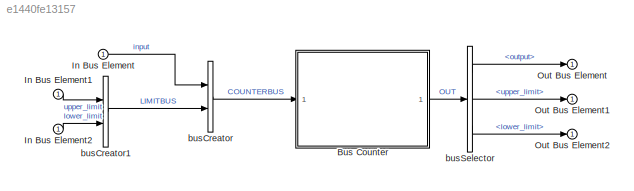
MODEL slx_e1440fe13157
KIND model
CONFIG AbsTol = auto
CONFIG EnableMultiTasking = on
CONFIG FixedStep = 0.1
CONFIG InitFcn = warning('off','Simulink:Logging:DatasetRTWGenRootOutputNotSupported');\nwarning('off','Simulink:Logging:DatasetRTWGenStateNotSupported');
CONFIG MaxStep = auto
CONFIG MinStep = auto
CONFIG RelTol = 1e-3
CONFIG SampleTimeConstraint = Unconstrained
CONFIG Solver = ode5
CONFIG SolverName = ode5
CONFIG StartFcn = warning('off','Simulink:Logging:DatasetRTWGenRootOutputNotSupported');\nwarning('off','Simulink:Logging:DatasetRTWGenStateNotSupported');
CONFIG StartTime = 0.0
CONFIG StopFcn = warning('on','Simulink:Logging:DatasetRTWGenRootOutputNotSupported');\nwarning('on','Simulink:Logging:DatasetRTWGenStateNotSupported');
CONFIG StopTime = 30
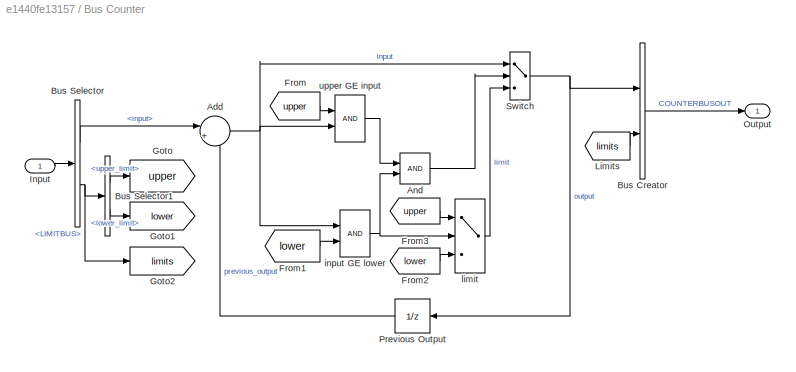
BLOCK [SubSystem] Bus Counter
  Ports = [1, 1]
  RequestExecContextInheritance = off
  TreatAsAtomicUnit = on
BLOCK [RelationalOperator] Bus Counter/ input GE lower
  AttributesFormatString = \n
  OutDataTypeStr = boolean
  Ports = [2, 1]
  Priority = 1
BLOCK [Switch] Bus Counter/ limit
  Threshold = 0.5
BLOCK [Sum] Bus Counter/Add
  Inputs = |++
  NameLocation = top
  Ports = [2, 1]
BLOCK [Logic] Bus Counter/And
  NameLocation = top
  OutDataTypeStr = boolean
  Ports = [2, 1]
BLOCK [BusCreator] Bus Counter/Bus Creator
  DisplayOption = bar
  InheritFromInputs = on
  Inputs = 2
  Ports = [2, 1]
BLOCK [BusSelector] Bus Counter/Bus Selector
  OutputSignals = input,LIMITBUS
  Ports = [1, 2]
BLOCK [BusSelector] Bus Counter/Bus Selector1
  OutputSignals = upper_limit,lower_limit
  Ports = [1, 2]
BLOCK [From] Bus Counter/From
  GotoTag = upper
BLOCK [From] Bus Counter/From1
  GotoTag = lower
BLOCK [From] Bus Counter/From2
  GotoTag = lower
BLOCK [From] Bus Counter/From3
  GotoTag = upper
BLOCK [Goto] Bus Counter/Goto
  GotoTag = upper
BLOCK [Goto] Bus Counter/Goto1
  GotoTag = lower
BLOCK [Goto] Bus Counter/Goto2
  GotoTag = limits
BLOCK [Inport] Bus Counter/Input
BLOCK [From] Bus Counter/Limits
  GotoTag = limits
BLOCK [Outport] Bus Counter/Output
  VectorParamsAs1DForOutWhenUnconnected = off
BLOCK [UnitDelay] Bus Counter/Previous Output
  HasFrameUpgradeWarning = on
  SampleTime = -1
BLOCK [Switch] Bus Counter/Switch
  Threshold = 0.5
BLOCK [RelationalOperator] Bus Counter/upper GE input
  AttributesFormatString = \n
  OutDataTypeStr = boolean
  Ports = [2, 1]
  Priority = 0
BLOCK [Inport] In Bus Element
BLOCK [Inport] In Bus Element1
BLOCK [Inport] In Bus Element2
BLOCK [Outport] Out Bus Element
BLOCK [Outport] Out Bus Element1
BLOCK [Outport] Out Bus Element2
BLOCK [BusCreator] busCreator
  DisplayOption = bar
  InheritFromInputs = on
  Inputs = 2
  Ports = [2, 1]
BLOCK [BusCreator] busCreator1
  DisplayOption = bar
  InheritFromInputs = on
  Inputs = 2
  Ports = [2, 1]
BLOCK [BusSelector] busSelector
  OutputSignals = output,LIMITBUS.upper_limit,LIMITBUS.lower_limit
  Ports = [1, 3]
NET Bus Counter/ input GE lower:1 -> Bus Counter/ limit:2, Bus Counter/And:2
LINE Bus Counter/ limit:1 -> Bus Counter/Switch:3
NET Bus Counter/Add:1 -> Bus Counter/ input GE lower:1, Bus Counter/Switch:1, Bus Counter/upper GE input:2
LINE Bus Counter/And:1 -> Bus Counter/Switch:2
LINE Bus Counter/Bus Creator:1 -> Bus Counter/Output:1
LINE Bus Counter/Bus Selector1:1 -> Bus Counter/Goto:1
LINE Bus Counter/Bus Selector1:2 -> Bus Counter/Goto1:1
LINE Bus Counter/Bus Selector:1 -> Bus Counter/Add:1
NET Bus Counter/Bus Selector:2 -> Bus Counter/Bus Selector1:1, Bus Counter/Goto2:1
LINE Bus Counter/From1:1 -> Bus Counter/ input GE lower:2
LINE Bus Counter/From2:1 -> Bus Counter/ limit:3
LINE Bus Counter/From3:1 -> Bus Counter/ limit:1
LINE Bus Counter/From:1 -> Bus Counter/upper GE input:1
LINE Bus Counter/Input:1 -> Bus Counter/Bus Selector:1
LINE Bus Counter/Limits:1 -> Bus Counter/Bus Creator:2
LINE Bus Counter/Previous Output:1 -> Bus Counter/Add:2
NET Bus Counter/Switch:1 -> Bus Counter/Bus Creator:1, Bus Counter/Previous Output:1
LINE Bus Counter/upper GE input:1 -> Bus Counter/And:1
LINE Bus Counter:1 -> busSelector:1
LINE In Bus Element1:1 -> busCreator1:1
LINE In Bus Element2:1 -> busCreator1:2
LINE In Bus Element:1 -> busCreator:1
LINE busCreator1:1 -> busCreator:2
LINE busCreator:1 -> Bus Counter:1
LINE busSelector:1 -> Out Bus Element:1
LINE busSelector:2 -> Out Bus Element1:1
LINE busSelector:3 -> Out Bus Element2:1
note: NET lines group one-source signal fan-out (src -> all destinations, sorted); 1:1 wires keep LINE
